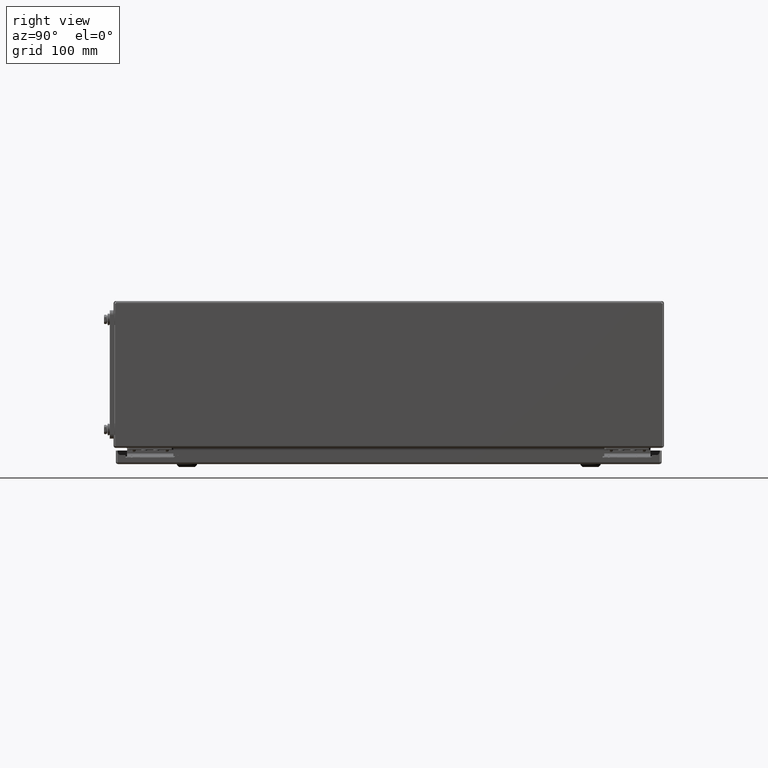
[diagram: clean part render]
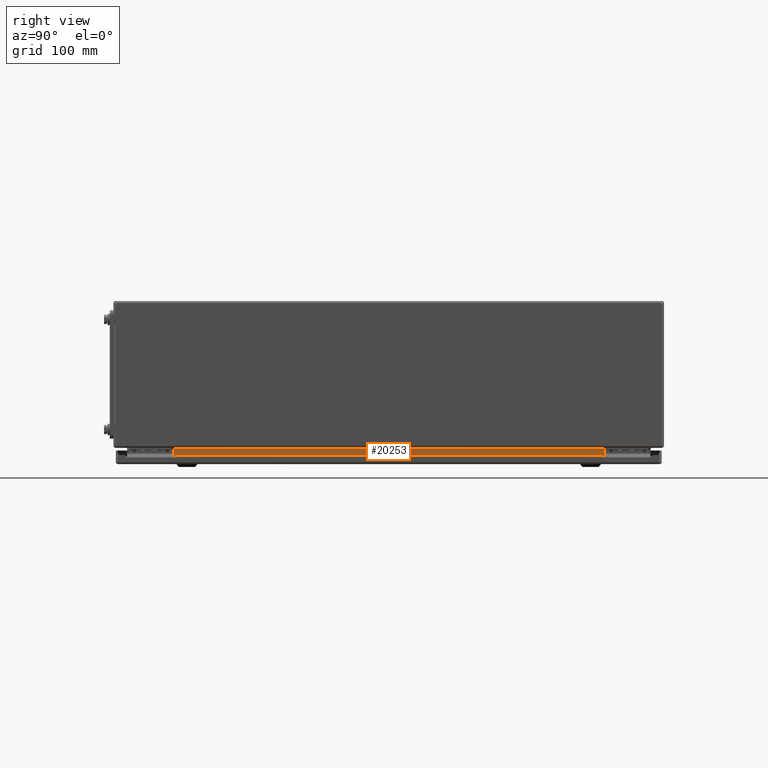
[diagram: same view with one face highlighted and labeled with its STEP entity id]
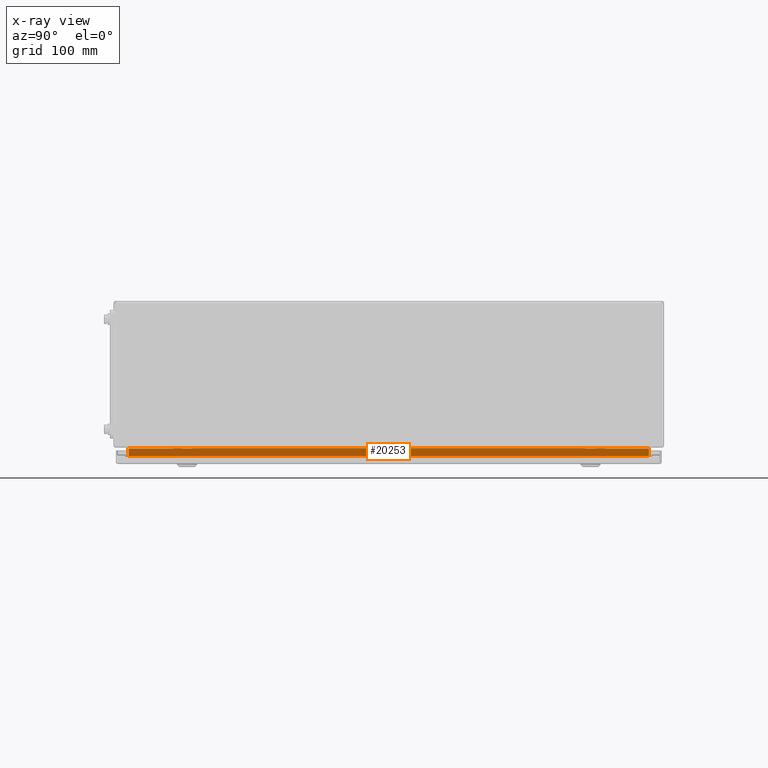
[diagram: x-ray of the same camera — body ghosted, the highlighted face saturated]
A machine part, right view. The second image highlights one B-rep face of the part: STEP entity #20253.
The next image is the same camera in x-ray: the body ghosted, the highlighted face saturated — about 0% of this face is hidden behind the body in this view.
In plain terms, the highlighted planar face has unit normal (1, 0, -0).
Its self-contained STEP definition (entity closure, byte-faithful):
#1389=PLANE('',#21957);
#1937=FACE_OUTER_BOUND('',#3115,.T.);
#3115=EDGE_LOOP('',(#13679,#13680,#13681,#13682));
#4498=LINE('',#30785,#5990);
#4532=LINE('',#30911,#6024);
#4534=LINE('',#30915,#6026);
#4535=LINE('',#30916,#6027);
#5990=VECTOR('',#24485,0.393700787401575);
#6024=VECTOR('',#24553,0.393700787401575);
#6026=VECTOR('',#24557,0.393700787401575);
#6027=VECTOR('',#24558,0.393700787401575);
#8452=VERTEX_POINT('',#30740);
#8453=VERTEX_POINT('',#30770);
#8477=VERTEX_POINT('',#30910);
#8478=VERTEX_POINT('',#30914);
#10429=EDGE_CURVE('',#8453,#8452,#4498,.T.);
#10467=EDGE_CURVE('',#8477,#8453,#4532,.T.);
#10469=EDGE_CURVE('',#8478,#8452,#4534,.T.);
#10470=EDGE_CURVE('',#8478,#8477,#4535,.T.);
#13679=ORIENTED_EDGE('',*,*,#10429,.T.);
#13680=ORIENTED_EDGE('',*,*,#10469,.F.);
#13681=ORIENTED_EDGE('',*,*,#10470,.T.);
#13682=ORIENTED_EDGE('',*,*,#10467,.T.);
#20253=ADVANCED_FACE('',(#1937),#1389,.T.);
#21957=AXIS2_PLACEMENT_3D('',#30913,#24555,#24556);
#24485=DIRECTION('',(-6.73426263601692E-16,1.,-4.93320270253675E-16));
#24553=DIRECTION('',(-5.71691422313938E-14,-5.56832197324821E-14,1.));
#24555=DIRECTION('center_axis',(-1.,-6.73426263601719E-16,-5.47476848350221E-14));
#24556=DIRECTION('ref_axis',(-5.47476848350221E-14,-8.8556073023075E-16,
1.));
#24557=DIRECTION('',(-5.71691422313938E-14,6.18746117626395E-14,1.));
#24558=DIRECTION('',(6.73426263601732E-16,-1.,-2.29331292610573E-16));
#30740=CARTESIAN_POINT('',(0.738499999999948,29.1764514565445,8.44893193564822));
#30770=CARTESIAN_POINT('',(0.738499999999967,0.82354854345602,8.44893193564824));
#30785=CARTESIAN_POINT('',(0.738499999999951,22.0882257282724,8.44893193564823));
#30910=CARTESIAN_POINT('',(0.73849999999999,0.82354854345604,8.04687500000007));
#30911=CARTESIAN_POINT('',(0.738499999999991,0.823548543456045,8.04687500000007));
#30913=CARTESIAN_POINT('Origin',(0.738499999999969,15.0000000000003,8.21502554644712));
#30914=CARTESIAN_POINT('',(0.73849999999997,29.1764514565444,8.04687500000006));
#30915=CARTESIAN_POINT('',(0.73849999999997,29.1764514565444,8.04687500000006));
#30916=CARTESIAN_POINT('',(0.738499999999978,15.0000000000002,8.04687500000006));